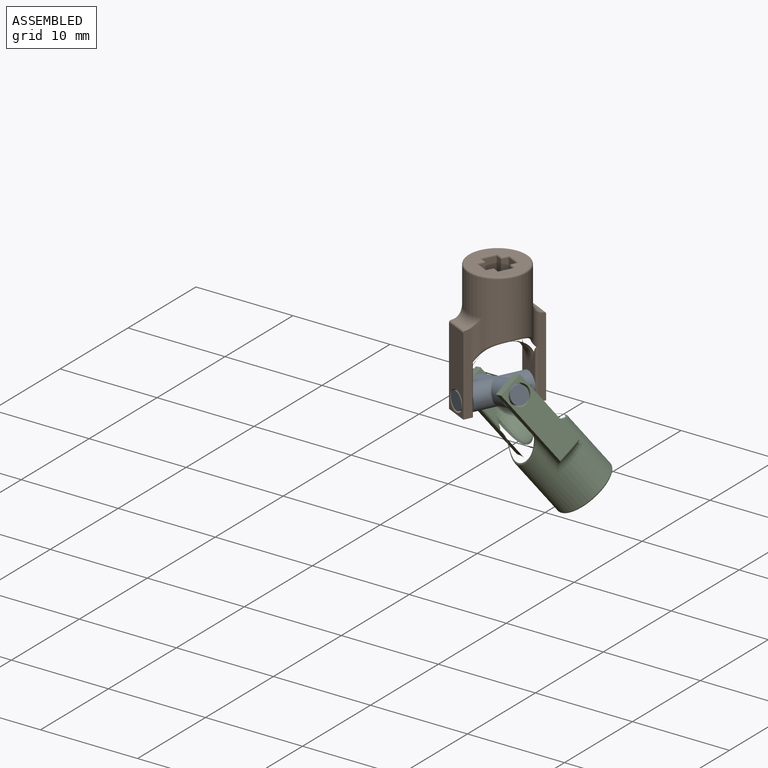
[diagram: assembled view]
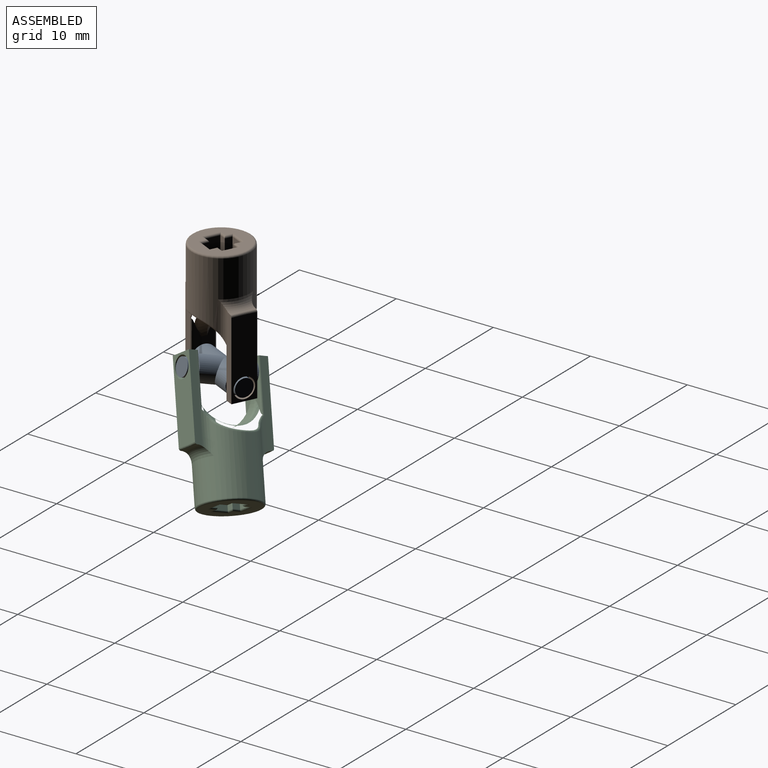
[diagram: assembled view, second angle]
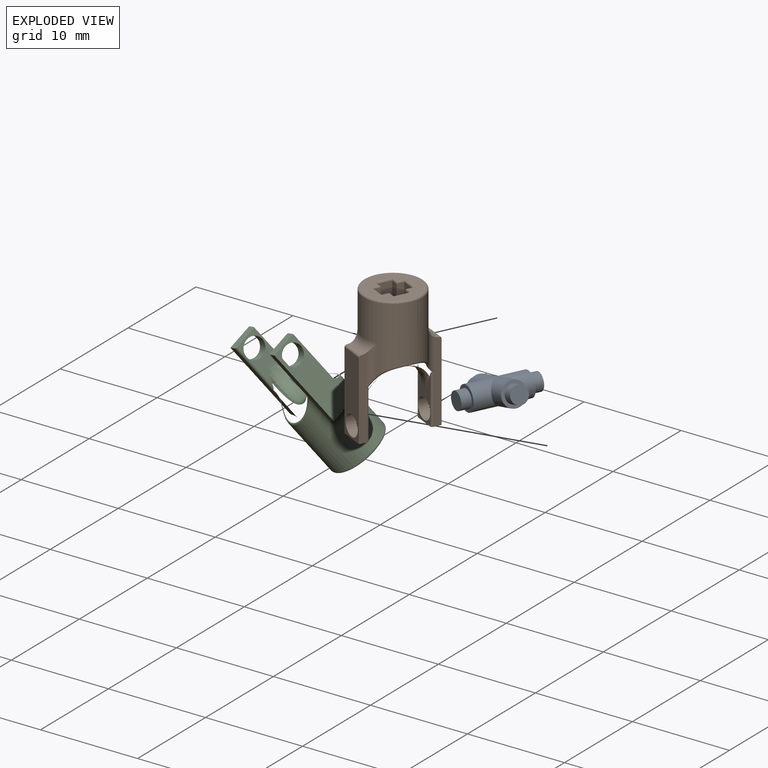
[diagram: exploded view]
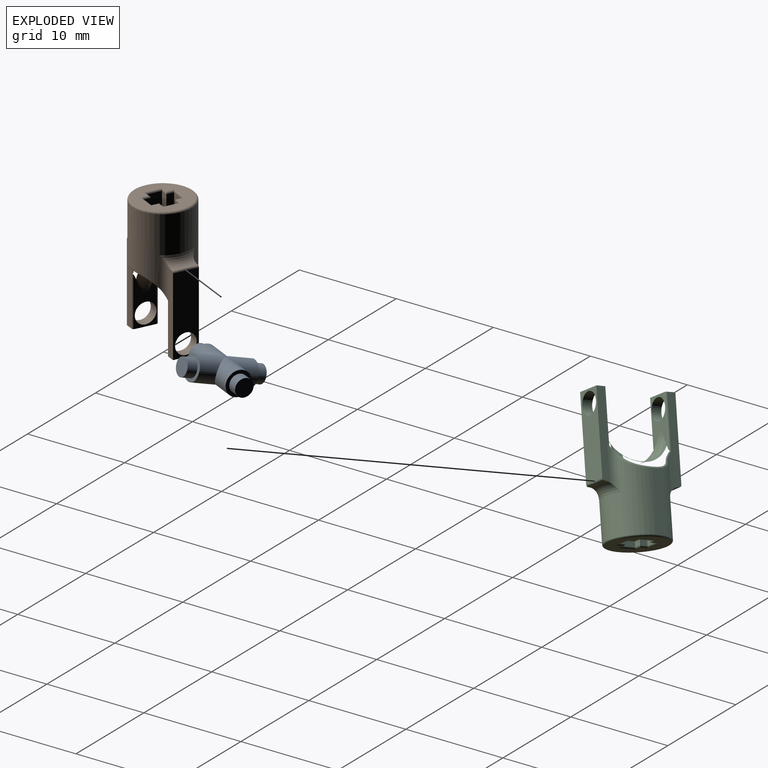
[diagram: exploded view, second angle]
ASSEMBLY  parts=3 mates=2
PART A: 16 faces, bbox 2.5x8x8 mm
  f0: cylinder r=1.25mm len=3mm, axis (0,0,1), area 17.3mm2, adj f1,f7,f15
  f1: plane 2.5x2.5mm, normal (0,0,-1), area 2.4mm2, adj f0,f2
  f2: cylinder r=0.9mm len=1.8mm, axis (0,0,1), area 5.7mm2, adj f1,f3
  f3: plane 1.8x1.8mm, normal (0,0,-1), area 2.5mm2, adj f2
  f4: plane 1.8x1.8mm, normal (0,-1,0), area 2.5mm2, adj f5
  f5: cylinder r=0.9mm len=1.8mm, axis (0,-1,0), area 5.7mm2, adj f4,f6
  f6: plane 2.5x2.5mm, normal (0,-1,0), area 2.4mm2, adj f5,f7
  f7: cylinder r=1.25mm len=3mm, axis (0,-1,0), area 17.3mm2, adj f0,f6,f11
  f8: plane 1.8x1.8mm, normal (0,0,1), area 2.5mm2, adj f9
  f9: cylinder r=0.9mm len=1.8mm, axis (0,0,1), area 5.7mm2, adj f8,f10
  f10: plane 2.5x2.5mm, normal (0,0,1), area 2.4mm2, adj f9,f11
  f11: cylinder r=1.25mm len=3mm, axis (0,0,1), area 17.3mm2, adj f7,f10,f15
  f12: plane 1.8x1.8mm, normal (0,1,0), area 2.5mm2, adj f13
  f13: cylinder r=0.9mm len=1.8mm, axis (0,-1,0), area 5.7mm2, adj f12,f14
  f14: plane 2.5x2.5mm, normal (0,1,0), area 2.4mm2, adj f13,f15
  f15: cylinder r=1.25mm len=3mm, axis (0,-1,0), area 17.3mm2, adj f0,f11,f14
PART B: 71 faces, bbox 14.4x7.6x10.5 mm
  f0: plane 0x0mm, normal (1,0,0), area 0mm2, adj f3,f37,f52
  f1: plane 0x0mm, normal (1,0,0), area 0mm2, adj f5,f35,f57
  f2: plane 8.36x0.69mm, normal (0,1,0), area 5.7mm2, adj f7,f9,f10,f36,f37,f53
  f3: plane 8.36x0.69mm, normal (0,-1,0), area 5.7mm2, adj f0,f7,f10,f37,f38,f52
  f4: plane 8.36x0.69mm, normal (0,-1,0), area 5.7mm2, adj f21,f23,f24,f33,f35,f55
  f5: plane 8.36x0.69mm, normal (0,1,0), area 5.7mm2, adj f1,f21,f24,f34,f35,f57
  f6: plane 3x3mm, normal (1,0,0), area 6.7mm2, adj f13,f14,f15,f16,f17,f18,f19,f26
  f7: plane 2.51x1mm, normal (-1,0,0), area 2.5mm2, adj f2,f3,f8,f10,f36,f38,f42,f50
  f8: plane 6.02x3.22mm, normal (0,0,-1), area 4.7mm2, adj f7,f11,f31,f32,f39,f40,f41,f42
  f9: plane 0x0mm, normal (1,0,0), area 0mm2, adj f2,f37,f53
  f10: plane 8.07x2.5mm, normal (0,0,1), area 16.7mm2, adj f2,f3,f7,f11,f52,f53,f54
  f11: cylinder r=1.05mm len=2.1mm, axis (0,0,1), area 6.6mm2, adj f8,f10
  f12: cylinder r=3mm len=6.74mm, axis (-1,0,0), area 106mm2, adj f33,f34,f35,f36,f37,f38,f44,f49
  f13: plane 4.8x1.5mm, normal (0,1,0), area 7.2mm2, adj f6,f14,f26,f59
  f14: plane 4.8x0.75mm, normal (0,0,-1), area 3.6mm2, adj f6,f13,f15,f58
  f15: plane 4.8x0.75mm, normal (0,1,0), area 3.6mm2, adj f6,f14,f16,f60
  f16: plane 4.8x1.5mm, normal (0,0,-1), area 7.2mm2, adj f6,f15,f17,f62
  f17: plane 4.8x0.75mm, normal (0,-1,0), area 3.6mm2, adj f6,f16,f18,f64
  f18: plane 4.8x0.75mm, normal (0,0,-1), area 3.6mm2, adj f6,f17,f19,f66
  f19: plane 4.8x1.5mm, normal (0,-1,0), area 7.2mm2, adj f6,f18,f30,f68
  f20: plane 5.6x5.6mm, normal (1,0,0), area 15.3mm2, adj f58,f59,f60,f61,f62,f63,f64,f65
  f21: plane 2.51x1mm, normal (-1,0,0), area 2.5mm2, adj f4,f5,f22,f24,f33,f34,f45,f47
  f22: plane 6.02x3.22mm, normal (0,0,1), area 4.7mm2, adj f21,f25,f31,f32,f39,f40,f41,f45
  f23: plane 0x0mm, normal (1,0,0), area 0mm2, adj f4,f35,f55
  f24: plane 8.07x2.5mm, normal (0,0,-1), area 16.7mm2, adj f4,f5,f21,f25,f55,f56,f57
  f25: cylinder r=1.05mm len=2.1mm, axis (0,0,-1), area 6.6mm2, adj f22,f24
  f26: plane 4.8x0.75mm, normal (0,0,1), area 3.6mm2, adj f6,f13,f27,f61
  f27: plane 4.8x0.75mm, normal (0,1,0), area 3.6mm2, adj f6,f26,f28,f63
  f28: plane 4.8x1.5mm, normal (0,0,1), area 7.2mm2, adj f6,f27,f29,f65
  f29: plane 4.8x0.75mm, normal (0,-1,0), area 3.6mm2, adj f6,f28,f30,f67
  f30: plane 4.8x0.75mm, normal (0,0,1), area 3.6mm2, adj f6,f19,f29,f69
  f31: bspline ~6.62x2.17mm, area 7.2mm2, adj f8,f22,f40,f47,f48,f49,f50,f51
  f32: bspline ~6.62x2.17mm, area 7.2mm2, adj f8,f22,f41,f42,f43,f44,f45,f46
  f33: cylinder r=1mm len=9.25mm, axis (-1,0,0), area 3.4mm2, adj f4,f12,f21,f35,f47,f48
  f34: cylinder r=1mm len=9.25mm, axis (-1,0,0), area 3.4mm2, adj f5,f12,f21,f35,f45,f46
  f35: torus R=4mm, axis (-1,0,0), area 4.1mm2, adj f1,f4,f5,f12,f23,f33,f34,f56
  f36: cylinder r=1mm len=9.25mm, axis (-1,0,0), area 3.4mm2, adj f2,f7,f12,f37,f42,f43
  f37: torus R=4mm, axis (-1,0,0), area 4.1mm2, adj f0,f2,f3,f9,f12,f36,f38,f54
  f38: cylinder r=1mm len=9.25mm, axis (-1,0,0), area 3.4mm2, adj f3,f7,f12,f37,f50,f51
  f39: cylinder r=3mm len=6mm, axis (0,1,0), area 12.3mm2, adj f8,f22,f40,f41
  f40: bspline ~6.69x3.62mm, area 4.3mm2, adj f8,f22,f31,f39
  f41: bspline ~6.69x3.74mm, area 4.3mm2, adj f8,f22,f32,f39
  f42: cylinder r=0.2mm len=5.19mm, axis (-1,0,0), area 1.7mm2, adj f7,f8,f32,f36,f43
  f43: bspline ~1.53x1.14mm, area 0.3mm2, adj f32,f36,f42,f44
  f44: bspline ~5.38x1.9mm, area 1.6mm2, adj f12,f32,f43,f46
  f45: cylinder r=0.2mm len=5.19mm, axis (-1,0,0), area 1.7mm2, adj f21,f22,f32,f34,f46
  f46: bspline ~1.55x1.16mm, area 0.3mm2, adj f32,f34,f44,f45
  f47: cylinder r=0.2mm len=5.19mm, axis (-1,0,0), area 1.7mm2, adj f21,f22,f31,f33,f48
  f48: bspline ~1.55x1.16mm, area 0.3mm2, adj f31,f33,f47,f49
  f49: bspline ~5.59x1.9mm, area 1.6mm2, adj f12,f31,f48,f51
  f50: cylinder r=0.2mm len=5.19mm, axis (-1,0,0), area 1.7mm2, adj f7,f8,f31,f38,f51
  f51: bspline ~1.53x1.14mm, area 0.3mm2, adj f31,f38,f49,f50
  f52: cylinder r=0.2mm len=0.2mm, axis (0,1,0), area 0mm2, adj f0,f3,f10,f54
  f53: cylinder r=0.2mm len=0.2mm, axis (0,1,0), area 0mm2, adj f2,f9,f10,f54
  f54: bspline ~3.34x0.23mm, area 0.7mm2, adj f10,f37,f52,f53
  f55: cylinder r=0.2mm len=0.2mm, axis (0,1,0), area 0mm2, adj f4,f23,f24,f56
  f56: bspline ~4.17x0.29mm, area 0.7mm2, adj f24,f35,f55,f57
  f57: cylinder r=0.2mm len=0.2mm, axis (0,1,0), area 0mm2, adj f1,f5,f24,f56
  f58: cylinder r=0.2mm len=0.95mm, axis (0,-1,0), area 0.2mm2, adj f14,f20,f59,f60
  f59: cylinder r=0.2mm len=1.9mm, axis (0,0,-1), area 0.5mm2, adj f13,f20,f58,f61
  f60: cylinder r=0.2mm len=0.95mm, axis (0,0,-1), area 0.2mm2, adj f15,f20,f58,f62
  f61: cylinder r=0.2mm len=0.95mm, axis (0,-1,0), area 0.2mm2, adj f20,f26,f59,f63
  f62: cylinder r=0.2mm len=1.9mm, axis (0,-1,0), area 0.5mm2, adj f16,f20,f60,f64
  f63: cylinder r=0.2mm len=0.95mm, axis (0,0,1), area 0.2mm2, adj f20,f27,f61,f65
  f64: cylinder r=0.2mm len=0.95mm, axis (0,0,1), area 0.2mm2, adj f17,f20,f62,f66
  f65: cylinder r=0.2mm len=1.9mm, axis (0,-1,0), area 0.5mm2, adj f20,f28,f63,f67
  f66: cylinder r=0.2mm len=0.95mm, axis (0,-1,0), area 0.2mm2, adj f18,f20,f64,f68
  f67: cylinder r=0.2mm len=0.95mm, axis (0,0,-1), area 0.2mm2, adj f20,f29,f65,f69
  f68: cylinder r=0.2mm len=1.9mm, axis (0,0,1), area 0.5mm2, adj f19,f20,f66,f69
  f69: cylinder r=0.2mm len=0.95mm, axis (0,-1,0), area 0.2mm2, adj f20,f30,f67,f68
  f70: torus R=2.8mm, axis (1,0,0), area 5.8mm2, adj f12,f20
PART C: 71 faces, bbox 14.4x11.3x7.6 mm
  f0: plane 0x0mm, normal (-1,0,0), area 0mm2, adj f3,f37,f52
  f1: plane 0x0mm, normal (-1,0,0), area 0mm2, adj f5,f35,f57
  f2: plane 8.36x0.69mm, normal (0,0,1), area 5.7mm2, adj f7,f9,f10,f36,f37,f53
  f3: plane 8.36x0.69mm, normal (0,0,-1), area 5.7mm2, adj f0,f7,f10,f37,f38,f52
  f4: plane 8.36x0.69mm, normal (0,0,-1), area 5.7mm2, adj f21,f23,f24,f33,f35,f55
  f5: plane 8.36x0.69mm, normal (0,0,1), area 5.7mm2, adj f1,f21,f24,f34,f35,f57
  f6: plane 3x3mm, normal (-1,0,0), area 6.8mm2, adj f13,f14,f15,f16,f17,f18,f19,f26
  f7: plane 2.51x1mm, normal (1,0,0), area 2.5mm2, adj f2,f3,f8,f10,f36,f38,f42,f50
  f8: plane 6.02x3.22mm, normal (0,1,0), area 4.7mm2, adj f7,f11,f31,f32,f39,f40,f41,f42
  f9: plane 0x0mm, normal (-1,0,0), area 0mm2, adj f2,f37,f53
  f10: plane 8.07x2.5mm, normal (0,-1,0), area 16.7mm2, adj f2,f3,f7,f11,f52,f53,f54
  f11: cylinder r=1.05mm len=2.1mm, axis (0,-1,0), area 6.6mm2, adj f8,f10
  f12: cylinder r=3mm len=6.74mm, axis (1,0,0), area 106mm2, adj f33,f34,f35,f36,f37,f38,f44,f49
  f13: plane 4.8x1.5mm, normal (0,0,1), area 7.2mm2, adj f6,f14,f26,f59
  f14: plane 4.8x0.75mm, normal (0,1,0), area 3.6mm2, adj f6,f13,f15,f58
  f15: plane 4.8x0.75mm, normal (0,0,1), area 3.6mm2, adj f6,f14,f16,f60
  f16: plane 4.8x1.5mm, normal (0,1,0), area 7.2mm2, adj f6,f15,f17,f62
  f17: plane 4.8x0.75mm, normal (0,0,-1), area 3.6mm2, adj f6,f16,f18,f64
  f18: plane 4.8x0.75mm, normal (0,1,0), area 3.6mm2, adj f6,f17,f19,f66
  f19: plane 4.8x1.5mm, normal (0,0,-1), area 7.2mm2, adj f6,f18,f30,f68
  f20: plane 5.6x5.6mm, normal (-1,0,0), area 15.3mm2, adj f58,f59,f60,f61,f62,f63,f64,f65
  f21: plane 2.51x1mm, normal (1,0,0), area 2.5mm2, adj f4,f5,f22,f24,f33,f34,f45,f47
  f22: plane 6.02x3.22mm, normal (0,-1,0), area 4.7mm2, adj f21,f25,f31,f32,f39,f40,f41,f45
  f23: plane 0x0mm, normal (-1,0,0), area 0mm2, adj f4,f35,f55
  f24: plane 8.07x2.5mm, normal (0,1,0), area 16.7mm2, adj f4,f5,f21,f25,f55,f56,f57
  f25: cylinder r=1.05mm len=2.1mm, axis (0,1,0), area 6.6mm2, adj f22,f24
  f26: plane 4.8x0.75mm, normal (0,-1,0), area 3.6mm2, adj f6,f13,f27,f61
  f27: plane 4.8x0.75mm, normal (0,0,1), area 3.6mm2, adj f6,f26,f28,f63
  f28: plane 4.8x1.5mm, normal (0,-1,0), area 7.2mm2, adj f6,f27,f29,f65
  f29: plane 4.8x0.75mm, normal (0,0,-1), area 3.6mm2, adj f6,f28,f30,f67
  f30: plane 4.8x0.75mm, normal (0,-1,0), area 3.6mm2, adj f6,f19,f29,f69
  f31: bspline ~6.62x2.17mm, area 7.2mm2, adj f8,f22,f40,f47,f48,f49,f50,f51
  f32: bspline ~6.62x2.17mm, area 7.2mm2, adj f8,f22,f41,f42,f43,f44,f45,f46
  f33: cylinder r=1mm len=9.25mm, axis (1,0,0), area 3.4mm2, adj f4,f12,f21,f35,f47,f48
  f34: cylinder r=1mm len=9.25mm, axis (1,0,0), area 3.4mm2, adj f5,f12,f21,f35,f45,f46
  f35: torus R=4mm, axis (1,0,0), area 4.1mm2, adj f1,f4,f5,f12,f23,f33,f34,f56
  f36: cylinder r=1mm len=9.25mm, axis (1,0,0), area 3.4mm2, adj f2,f7,f12,f37,f42,f43
  f37: torus R=4mm, axis (1,0,0), area 4.1mm2, adj f0,f2,f3,f9,f12,f36,f38,f54
  f38: cylinder r=1mm len=9.25mm, axis (1,0,0), area 3.4mm2, adj f3,f7,f12,f37,f50,f51
  f39: cylinder r=3mm len=6mm, axis (0,0,1), area 12.3mm2, adj f8,f22,f40,f41
  f40: bspline ~6.69x3.62mm, area 4.3mm2, adj f8,f22,f31,f39
  f41: bspline ~6.69x3.74mm, area 4.3mm2, adj f8,f22,f32,f39
  f42: cylinder r=0.2mm len=5.19mm, axis (1,0,0), area 1.7mm2, adj f7,f8,f32,f36,f43
  f43: bspline ~1.53x1.14mm, area 0.3mm2, adj f32,f36,f42,f44
  f44: bspline ~5.59x1.9mm, area 1.6mm2, adj f12,f32,f43,f46
  f45: cylinder r=0.2mm len=5.19mm, axis (1,0,0), area 1.7mm2, adj f21,f22,f32,f34,f46
  f46: bspline ~1.55x1.16mm, area 0.3mm2, adj f32,f34,f44,f45
  f47: cylinder r=0.2mm len=5.19mm, axis (1,0,0), area 1.7mm2, adj f21,f22,f31,f33,f48
  f48: bspline ~1.55x1.16mm, area 0.3mm2, adj f31,f33,f47,f49
  f49: bspline ~5.38x1.9mm, area 1.6mm2, adj f12,f31,f48,f51
  f50: cylinder r=0.2mm len=5.19mm, axis (1,0,0), area 1.7mm2, adj f7,f8,f31,f38,f51
  f51: bspline ~1.53x1.14mm, area 0.3mm2, adj f31,f38,f49,f50
  f52: cylinder r=0.2mm len=0.2mm, axis (0,0,1), area 0mm2, adj f0,f3,f10,f54
  f53: cylinder r=0.2mm len=0.2mm, axis (0,0,1), area 0mm2, adj f2,f9,f10,f54
  f54: bspline ~4.17x0.29mm, area 0.7mm2, adj f10,f37,f52,f53
  f55: cylinder r=0.2mm len=0.2mm, axis (0,0,1), area 0mm2, adj f4,f23,f24,f56
  f56: bspline ~3.34x0.23mm, area 0.7mm2, adj f24,f35,f55,f57
  f57: cylinder r=0.2mm len=0.2mm, axis (0,0,1), area 0mm2, adj f1,f5,f24,f56
  f58: cylinder r=0.2mm len=0.95mm, axis (0,0,-1), area 0.2mm2, adj f14,f20,f59,f60
  f59: cylinder r=0.2mm len=1.9mm, axis (0,1,0), area 0.5mm2, adj f13,f20,f58,f61
  f60: cylinder r=0.2mm len=0.95mm, axis (0,1,0), area 0.2mm2, adj f15,f20,f58,f62
  f61: cylinder r=0.2mm len=0.95mm, axis (0,0,-1), area 0.2mm2, adj f20,f26,f59,f63
  f62: cylinder r=0.2mm len=1.9mm, axis (0,0,-1), area 0.5mm2, adj f16,f20,f60,f64
  f63: cylinder r=0.2mm len=0.95mm, axis (0,-1,0), area 0.2mm2, adj f20,f27,f61,f65
  f64: cylinder r=0.2mm len=0.95mm, axis (0,-1,0), area 0.2mm2, adj f17,f20,f62,f66
  f65: cylinder r=0.2mm len=1.9mm, axis (0,0,-1), area 0.5mm2, adj f20,f28,f63,f67
  f66: cylinder r=0.2mm len=0.95mm, axis (0,0,-1), area 0.2mm2, adj f18,f20,f64,f68
  f67: cylinder r=0.2mm len=0.95mm, axis (0,1,0), area 0.2mm2, adj f20,f29,f65,f69
  f68: cylinder r=0.2mm len=1.9mm, axis (0,-1,0), area 0.5mm2, adj f19,f20,f66,f69
  f69: cylinder r=0.2mm len=0.95mm, axis (0,0,-1), area 0.2mm2, adj f20,f30,f67,f68
  f70: torus R=2.8mm, axis (-1,0,0), area 5.8mm2, adj f12,f20
PLACE A rot(axis=(0.73,0.32,-0.6),125.1deg) t=(-7.77,-4.46,-60.77)mm
PLACE B rot(axis=(-0.65,-0.4,-0.65),135.9deg) t=(-7.77,-4.46,-60.77)mm
PLACE C rot(axis=(0.43,-0.82,0.38),143deg) t=(-7.77,-4.46,-60.77)mm
MATE revolute A.f0 <-> B.f11  axis (-0.44,-0.9,0) through (-9.52,-8.06,-60.77)mm
MATE revolute C.f25 <-> A.f5  axis (0.86,-0.42,0.3) through (-4.34,-6.13,-59.58)mm
